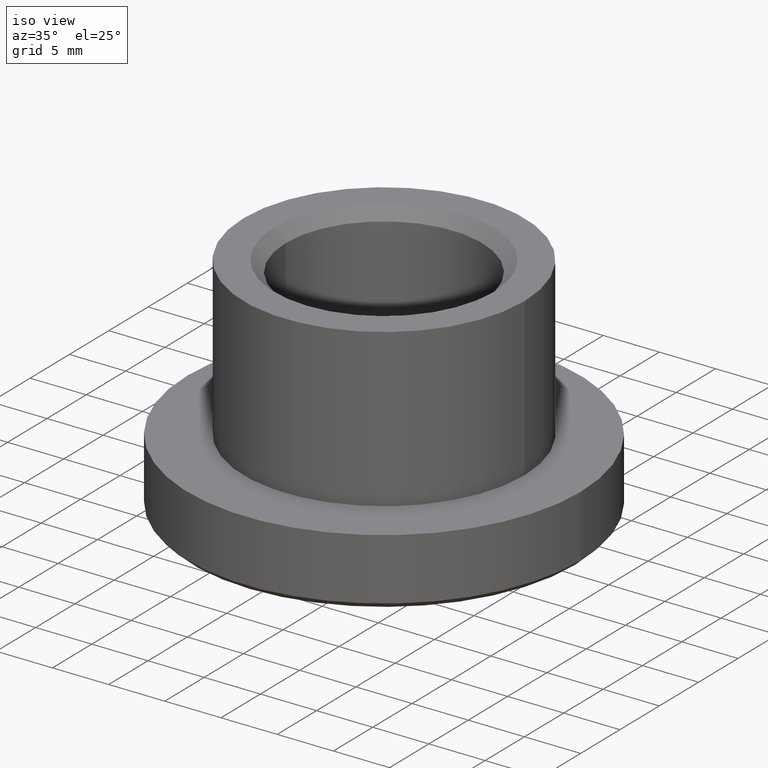
[diagram: clean part render]
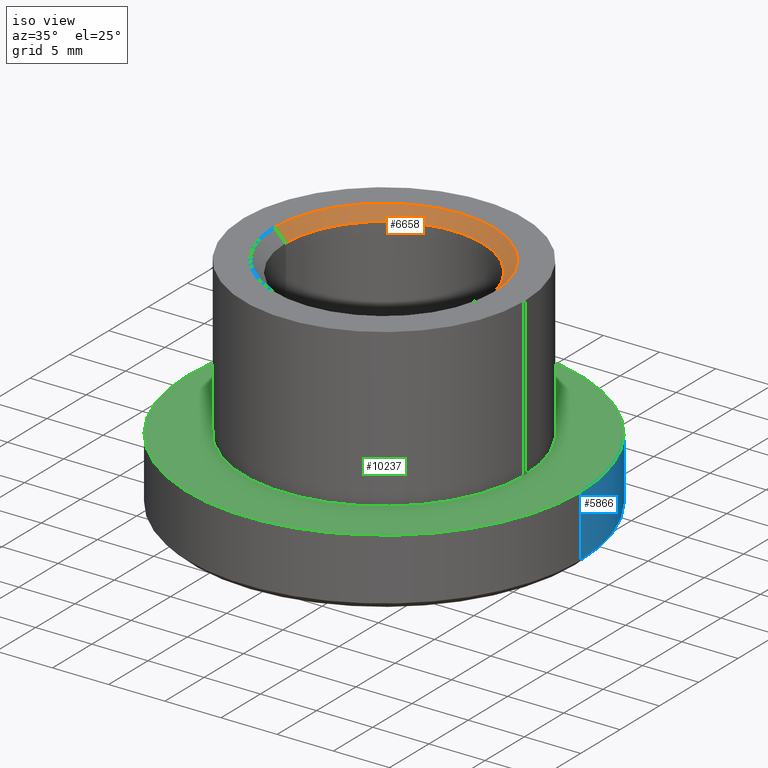
[diagram: same view with three faces highlighted in distinct colors, each labeled with its STEP entity id]
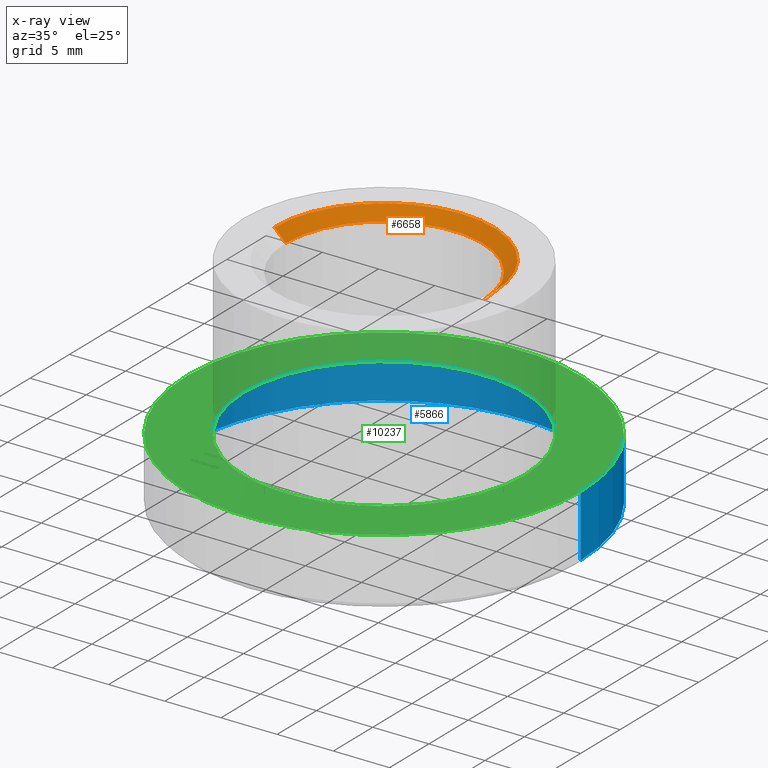
[diagram: x-ray of the same camera — body ghosted, the three highlighted faces saturated]
A machine part, iso view with three faces highlighted in distinct colors.
The next image is the same camera in x-ray (body ghosted, the three faces saturated) — at least one of them is partly hidden behind the body in this view.
Their STEP definitions:

[orange] entity #6658 — the highlighted conical surface has half-angle 45 deg.
#12 = DIRECTION ( 'NONE',  ( 0.000000000000000000, 0.000000000000000000, 1.000000000000000000 ) ) ;
#108 = DIRECTION ( 'NONE',  ( -1.000000000000000000, 0.000000000000000000, 0.000000000000000000 ) ) ;
#756 = DIRECTION ( 'NONE',  ( 0.000000000000000000, 0.000000000000000000, -1.000000000000000000 ) ) ;
#1129 = DIRECTION ( 'NONE',  ( 0.000000000000000000, 0.000000000000000000, 1.000000000000000000 ) ) ;
#1511 = VERTEX_POINT ( 'NONE', #1561 ) ;
#1561 = CARTESIAN_POINT ( 'NONE',  ( -8.749999999999994671, 1.071565949253933138E-15, 8.999999999999989342 ) ) ;
#2008 = VECTOR ( 'NONE', #2320, 1000.000000000000000 ) ;
#2036 = AXIS2_PLACEMENT_3D ( 'NONE', #7654, #1129, #5521 ) ;
#2243 = CARTESIAN_POINT ( 'NONE',  ( 0.000000000000000000, 0.000000000000000000, 8.999999999999989342 ) ) ;
#2320 = DIRECTION ( 'NONE',  ( -0.7071067811865487940, 8.659560562354948882E-17, 0.7071067811865463515 ) ) ;
#3885 = CARTESIAN_POINT ( 'NONE',  ( 8.749999999999994671, 0.000000000000000000, 8.999999999999989342 ) ) ;
#4069 = LINE ( 'NONE', #8621, #2008 ) ;
#4079 = EDGE_CURVE ( 'NONE', #12894, #1511, #12768, .T. ) ;
#4173 = CARTESIAN_POINT ( 'NONE',  ( -9.750000000000008882, 1.194030629168670456E-15, 10.00000000000000000 ) ) ;
#5062 = EDGE_CURVE ( 'NONE', #12894, #5375, #10585, .T. ) ;
#5200 = ORIENTED_EDGE ( 'NONE', *, *, #5698, .F. ) ;
#5375 = VERTEX_POINT ( 'NONE', #6726 ) ;
#5521 = DIRECTION ( 'NONE',  ( 1.000000000000000000, 0.000000000000000000, 0.000000000000000000 ) ) ;
#5698 = EDGE_CURVE ( 'NONE', #1511, #6345, #4069, .T. ) ;
#6248 = AXIS2_PLACEMENT_3D ( 'NONE', #2243, #12, #108 ) ;
#6345 = VERTEX_POINT ( 'NONE', #4173 ) ;
#6658 = ADVANCED_FACE ( 'NONE', ( #7440 ), #12729, .F. ) ;
#6726 = CARTESIAN_POINT ( 'NONE',  ( 9.750000000000008882, 0.000000000000000000, 10.00000000000000000 ) ) ;
#7302 = ORIENTED_EDGE ( 'NONE', *, *, #8803, .F. ) ;
#7440 = FACE_OUTER_BOUND ( 'NONE', #12229, .T. ) ;
#7654 = CARTESIAN_POINT ( 'NONE',  ( 0.000000000000000000, 0.000000000000000000, 8.999999999999989342 ) ) ;
#8251 = DIRECTION ( 'NONE',  ( 0.7071067811865487940, 0.000000000000000000, 0.7071067811865463515 ) ) ;
#8621 = CARTESIAN_POINT ( 'NONE',  ( -8.749999999999994671, 1.071565949253933138E-15, 8.999999999999989342 ) ) ;
#8803 = EDGE_CURVE ( 'NONE', #6345, #5375, #8952, .T. ) ;
#8952 = CIRCLE ( 'NONE', #9447, 9.750000000000008882 ) ;
#9210 = CARTESIAN_POINT ( 'NONE',  ( 8.749999999999994671, 0.000000000000000000, 8.999999999999989342 ) ) ;
#9447 = AXIS2_PLACEMENT_3D ( 'NONE', #10473, #756, #11503 ) ;
#9588 = ORIENTED_EDGE ( 'NONE', *, *, #4079, .F. ) ;
#10473 = CARTESIAN_POINT ( 'NONE',  ( 0.000000000000000000, 0.000000000000000000, 10.00000000000000000 ) ) ;
#10585 = LINE ( 'NONE', #3885, #10752 ) ;
#10752 = VECTOR ( 'NONE', #8251, 1000.000000000000000 ) ;
#11349 = ORIENTED_EDGE ( 'NONE', *, *, #5062, .T. ) ;
#11503 = DIRECTION ( 'NONE',  ( -1.000000000000000000, 0.000000000000000000, 0.000000000000000000 ) ) ;
#12229 = EDGE_LOOP ( 'NONE', ( #5200, #9588, #11349, #7302 ) ) ;
#12729 = CONICAL_SURFACE ( 'NONE', #2036, 8.749999999999994671, 0.7853981633974500554 ) ;
#12768 = CIRCLE ( 'NONE', #6248, 8.749999999999994671 ) ;
#12894 = VERTEX_POINT ( 'NONE', #9210 ) ;

[blue] entity #5866 — the highlighted cylindrical surface (partial cylindrical patch) has radius 17.5 mm, axis along (-0, -0, 1).
#241 = DIRECTION ( 'NONE',  ( -0.000000000000000000, -0.000000000000000000, 1.000000000000000000 ) ) ;
#458 = EDGE_LOOP ( 'NONE', ( #5587, #6575, #5899, #13908 ) ) ;
#498 = LINE ( 'NONE', #2557, #8873 ) ;
#1254 = AXIS2_PLACEMENT_3D ( 'NONE', #1744, #6275, #3901 ) ;
#1517 = EDGE_CURVE ( 'NONE', #8160, #6279, #498, .T. ) ;
#1708 = CARTESIAN_POINT ( 'NONE',  ( 0.000000000000000000, 0.000000000000000000, 10.00000000000000000 ) ) ;
#1744 = CARTESIAN_POINT ( 'NONE',  ( 0.000000000000000000, 0.000000000000000000, -4.000000000000000000 ) ) ;
#2557 = CARTESIAN_POINT ( 'NONE',  ( -17.50000000000000000, 2.143131898507868248E-15, 10.00000000000000000 ) ) ;
#2863 = CARTESIAN_POINT ( 'NONE',  ( 0.000000000000000000, 0.000000000000000000, -9.500000000000000000 ) ) ;
#3251 = VERTEX_POINT ( 'NONE', #10791 ) ;
#3901 = DIRECTION ( 'NONE',  ( 1.000000000000000000, 0.000000000000000000, 0.000000000000000000 ) ) ;
#5102 = EDGE_CURVE ( 'NONE', #6958, #8160, #13086, .T. ) ;
#5587 = ORIENTED_EDGE ( 'NONE', *, *, #5102, .T. ) ;
#5866 = ADVANCED_FACE ( 'NONE', ( #12068 ), #9170, .T. ) ;
#5899 = ORIENTED_EDGE ( 'NONE', *, *, #11755, .F. ) ;
#6275 = DIRECTION ( 'NONE',  ( -0.000000000000000000, -0.000000000000000000, 1.000000000000000000 ) ) ;
#6279 = VERTEX_POINT ( 'NONE', #12178 ) ;
#6364 = CIRCLE ( 'NONE', #1254, 17.50000000000000000 ) ;
#6575 = ORIENTED_EDGE ( 'NONE', *, *, #1517, .T. ) ;
#6958 = VERTEX_POINT ( 'NONE', #11622 ) ;
#8160 = VERTEX_POINT ( 'NONE', #12502 ) ;
#8188 = DIRECTION ( 'NONE',  ( 1.000000000000000000, 0.000000000000000000, 0.000000000000000000 ) ) ;
#8873 = VECTOR ( 'NONE', #12467, 1000.000000000000000 ) ;
#9170 = CYLINDRICAL_SURFACE ( 'NONE', #13262, 17.50000000000000000 ) ;
#9589 = LINE ( 'NONE', #13275, #9963 ) ;
#9963 = VECTOR ( 'NONE', #241, 1000.000000000000000 ) ;
#10316 = DIRECTION ( 'NONE',  ( -0.000000000000000000, -0.000000000000000000, 1.000000000000000000 ) ) ;
#10528 = DIRECTION ( 'NONE',  ( 1.000000000000000000, 0.000000000000000000, 0.000000000000000000 ) ) ;
#10719 = DIRECTION ( 'NONE',  ( -0.000000000000000000, -0.000000000000000000, 1.000000000000000000 ) ) ;
#10791 = CARTESIAN_POINT ( 'NONE',  ( 17.50000000000000000, 0.000000000000000000, -4.000000000000000000 ) ) ;
#11215 = EDGE_CURVE ( 'NONE', #6958, #3251, #9589, .T. ) ;
#11622 = CARTESIAN_POINT ( 'NONE',  ( 17.50000000000000000, 0.000000000000000000, -9.500000000000000000 ) ) ;
#11755 = EDGE_CURVE ( 'NONE', #3251, #6279, #6364, .T. ) ;
#12068 = FACE_OUTER_BOUND ( 'NONE', #458, .T. ) ;
#12178 = CARTESIAN_POINT ( 'NONE',  ( -17.50000000000000000, 2.143131898507868248E-15, -4.000000000000000000 ) ) ;
#12467 = DIRECTION ( 'NONE',  ( -0.000000000000000000, -0.000000000000000000, 1.000000000000000000 ) ) ;
#12502 = CARTESIAN_POINT ( 'NONE',  ( -17.50000000000000000, 2.143131898507868248E-15, -9.500000000000000000 ) ) ;
#13086 = CIRCLE ( 'NONE', #13445, 17.50000000000000000 ) ;
#13262 = AXIS2_PLACEMENT_3D ( 'NONE', #1708, #10316, #8188 ) ;
#13275 = CARTESIAN_POINT ( 'NONE',  ( 17.50000000000000000, 0.000000000000000000, 10.00000000000000000 ) ) ;
#13445 = AXIS2_PLACEMENT_3D ( 'NONE', #2863, #10719, #10528 ) ;
#13908 = ORIENTED_EDGE ( 'NONE', *, *, #11215, .F. ) ;

[green] entity #10237 — the highlighted planar face has unit normal (0, 0, -1).
#43 = ORIENTED_EDGE ( 'NONE', *, *, #10561, .F. ) ;
#463 = VERTEX_POINT ( 'NONE', #11245 ) ;
#548 = CIRCLE ( 'NONE', #2973, 12.50000000000000000 ) ;
#893 = PLANE ( 'NONE',  #12555 ) ;
#1089 = FACE_OUTER_BOUND ( 'NONE', #10366, .T. ) ;
#1254 = AXIS2_PLACEMENT_3D ( 'NONE', #1744, #6275, #3901 ) ;
#1744 = CARTESIAN_POINT ( 'NONE',  ( 0.000000000000000000, 0.000000000000000000, -4.000000000000000000 ) ) ;
#1998 = DIRECTION ( 'NONE',  ( -1.000000000000000000, 0.000000000000000000, -0.000000000000000000 ) ) ;
#2197 = CARTESIAN_POINT ( 'NONE',  ( 0.000000000000000000, 0.000000000000000000, -4.000000000000000000 ) ) ;
#2262 = DIRECTION ( 'NONE',  ( 1.000000000000000000, 0.000000000000000000, 0.000000000000000000 ) ) ;
#2973 = AXIS2_PLACEMENT_3D ( 'NONE', #2197, #9830, #6368 ) ;
#3165 = AXIS2_PLACEMENT_3D ( 'NONE', #5665, #12137, #2262 ) ;
#3251 = VERTEX_POINT ( 'NONE', #10791 ) ;
#3509 = CARTESIAN_POINT ( 'NONE',  ( 0.000000000000000000, 0.000000000000000000, -4.000000000000000000 ) ) ;
#3901 = DIRECTION ( 'NONE',  ( 1.000000000000000000, 0.000000000000000000, 0.000000000000000000 ) ) ;
#4938 = EDGE_CURVE ( 'NONE', #6279, #3251, #8157, .T. ) ;
#4983 = AXIS2_PLACEMENT_3D ( 'NONE', #3509, #11151, #8976 ) ;
#5385 = ORIENTED_EDGE ( 'NONE', *, *, #11755, .T. ) ;
#5665 = CARTESIAN_POINT ( 'NONE',  ( 0.000000000000000000, 0.000000000000000000, -4.000000000000000000 ) ) ;
#6275 = DIRECTION ( 'NONE',  ( -0.000000000000000000, -0.000000000000000000, 1.000000000000000000 ) ) ;
#6279 = VERTEX_POINT ( 'NONE', #12178 ) ;
#6344 = ORIENTED_EDGE ( 'NONE', *, *, #13440, .F. ) ;
#6364 = CIRCLE ( 'NONE', #1254, 17.50000000000000000 ) ;
#6368 = DIRECTION ( 'NONE',  ( 1.000000000000000000, 0.000000000000000000, 0.000000000000000000 ) ) ;
#7389 = FACE_BOUND ( 'NONE', #9431, .T. ) ;
#8157 = CIRCLE ( 'NONE', #4983, 17.50000000000000000 ) ;
#8166 = ORIENTED_EDGE ( 'NONE', *, *, #4938, .T. ) ;
#8533 = DIRECTION ( 'NONE',  ( 0.000000000000000000, 0.000000000000000000, -1.000000000000000000 ) ) ;
#8556 = CIRCLE ( 'NONE', #3165, 12.50000000000000000 ) ;
#8976 = DIRECTION ( 'NONE',  ( 1.000000000000000000, 0.000000000000000000, 0.000000000000000000 ) ) ;
#9431 = EDGE_LOOP ( 'NONE', ( #43, #6344 ) ) ;
#9532 = CARTESIAN_POINT ( 'NONE',  ( 0.000000000000000000, 12.50000000000000000, -4.000000000000000000 ) ) ;
#9830 = DIRECTION ( 'NONE',  ( -0.000000000000000000, -0.000000000000000000, 1.000000000000000000 ) ) ;
#9958 = VERTEX_POINT ( 'NONE', #12919 ) ;
#10237 = ADVANCED_FACE ( 'NONE', ( #7389, #1089 ), #893, .F. ) ;
#10366 = EDGE_LOOP ( 'NONE', ( #5385, #8166 ) ) ;
#10561 = EDGE_CURVE ( 'NONE', #9958, #463, #548, .T. ) ;
#10791 = CARTESIAN_POINT ( 'NONE',  ( 17.50000000000000000, 0.000000000000000000, -4.000000000000000000 ) ) ;
#11151 = DIRECTION ( 'NONE',  ( -0.000000000000000000, -0.000000000000000000, 1.000000000000000000 ) ) ;
#11245 = CARTESIAN_POINT ( 'NONE',  ( -12.50000000000000000, 1.530808498934191521E-15, -4.000000000000000000 ) ) ;
#11755 = EDGE_CURVE ( 'NONE', #3251, #6279, #6364, .T. ) ;
#12137 = DIRECTION ( 'NONE',  ( -0.000000000000000000, -0.000000000000000000, 1.000000000000000000 ) ) ;
#12178 = CARTESIAN_POINT ( 'NONE',  ( -17.50000000000000000, 2.143131898507868248E-15, -4.000000000000000000 ) ) ;
#12555 = AXIS2_PLACEMENT_3D ( 'NONE', #9532, #8533, #1998 ) ;
#12919 = CARTESIAN_POINT ( 'NONE',  ( 12.50000000000000000, 0.000000000000000000, -4.000000000000000000 ) ) ;
#13440 = EDGE_CURVE ( 'NONE', #463, #9958, #8556, .T. ) ;